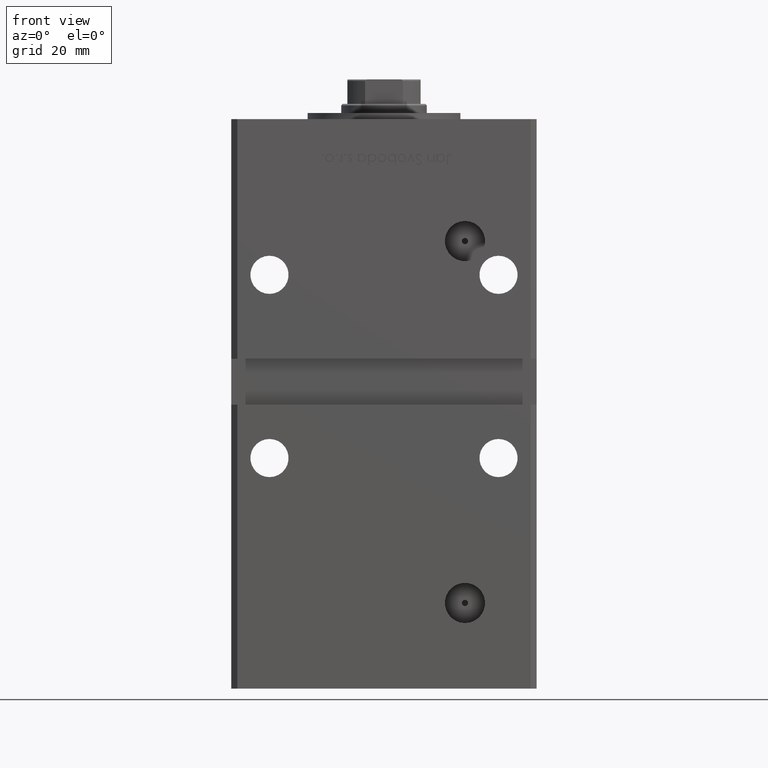
[diagram: clean part render]
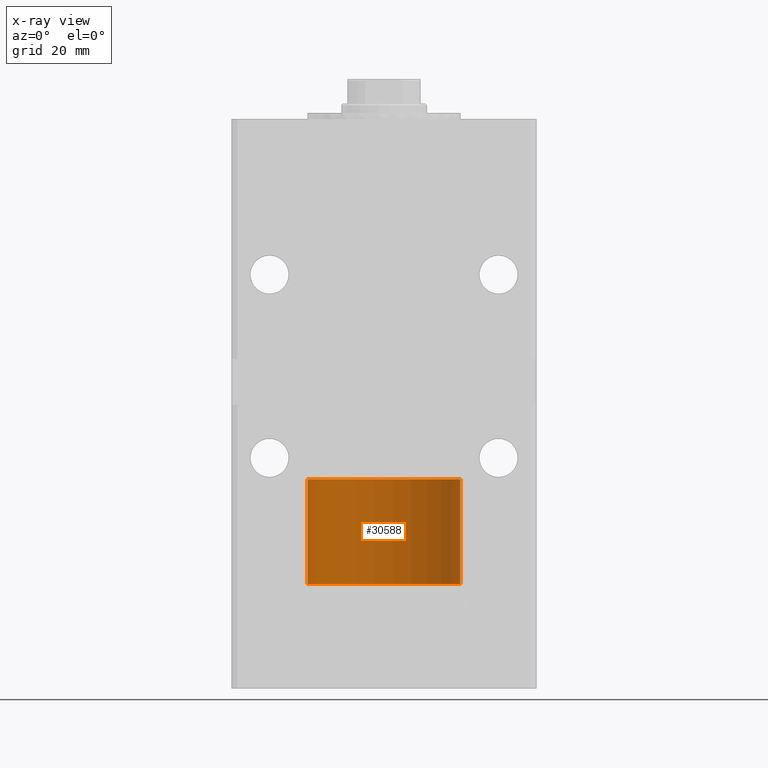
[diagram: x-ray — body ghosted, one internal face saturated and labeled with its STEP entity id]
A machine part, front view, then the same camera in x-ray: the body is ghosted and one INTERNAL B-rep face — a face not visible from any outside direction — is saturated and labeled: STEP entity #30588.
In plain terms, the highlighted cylindrical surface (partial cylindrical patch) has radius 25 mm, axis along (-0, -0, -1).
Its self-contained STEP definition (entity closure, byte-faithful):
#652 = VECTOR ( 'NONE', #23974, 1000.000000000000000 ) ;
#847 = ORIENTED_EDGE ( 'NONE', *, *, #40661, .F. ) ;
#2039 = CARTESIAN_POINT ( 'NONE',  ( 25.00000000000000000, 3.061616997868383043E-15, 0.000000000000000000 ) ) ;
#2046 = VERTEX_POINT ( 'NONE', #39727 ) ;
#3691 = ORIENTED_EDGE ( 'NONE', *, *, #45877, .T. ) ;
#4539 = EDGE_CURVE ( 'NONE', #2046, #31157, #8964, .T. ) ;
#4554 = ORIENTED_EDGE ( 'NONE', *, *, #43288, .T. ) ;
#5861 = CYLINDRICAL_SURFACE ( 'NONE', #44502, 25.00000000000000000 ) ;
#6545 = CARTESIAN_POINT ( 'NONE',  ( 0.000000000000000000, 0.000000000000000000, 34.25000000000000000 ) ) ;
#7578 = CARTESIAN_POINT ( 'NONE',  ( -25.00000000000000000, 0.000000000000000000, 34.25000000000000000 ) ) ;
#7931 = VERTEX_POINT ( 'NONE', #47235 ) ;
#8150 = CARTESIAN_POINT ( 'NONE',  ( 0.000000000000000000, 0.000000000000000000, 0.000000000000000000 ) ) ;
#8964 = CIRCLE ( 'NONE', #18400, 25.00000000000000000 ) ;
#9395 = AXIS2_PLACEMENT_3D ( 'NONE', #8150, #24545, #20508 ) ;
#10504 = VERTEX_POINT ( 'NONE', #2039 ) ;
#10854 = DIRECTION ( 'NONE',  ( 0.000000000000000000, 0.000000000000000000, 1.000000000000000000 ) ) ;
#12918 = CARTESIAN_POINT ( 'NONE',  ( 25.00000000000000000, 3.061616997868383043E-15, 34.25000000000000000 ) ) ;
#14556 = CIRCLE ( 'NONE', #9395, 25.00000000000000000 ) ;
#15325 = VECTOR ( 'NONE', #36875, 1000.000000000000000 ) ;
#16168 = LINE ( 'NONE', #7578, #652 ) ;
#18400 = AXIS2_PLACEMENT_3D ( 'NONE', #6545, #10854, #19179 ) ;
#19179 = DIRECTION ( 'NONE',  ( 1.000000000000000000, 0.000000000000000000, 0.000000000000000000 ) ) ;
#20508 = DIRECTION ( 'NONE',  ( 1.000000000000000000, 0.000000000000000000, 0.000000000000000000 ) ) ;
#21451 = FACE_OUTER_BOUND ( 'NONE', #24270, .T. ) ;
#23974 = DIRECTION ( 'NONE',  ( -0.000000000000000000, -0.000000000000000000, -1.000000000000000000 ) ) ;
#23980 = LINE ( 'NONE', #12918, #15325 ) ;
#24270 = EDGE_LOOP ( 'NONE', ( #39175, #4554, #3691, #847 ) ) ;
#24545 = DIRECTION ( 'NONE',  ( 0.000000000000000000, 0.000000000000000000, 1.000000000000000000 ) ) ;
#30588 = ADVANCED_FACE ( 'NONE', ( #21451 ), #5861, .T. ) ;
#31157 = VERTEX_POINT ( 'NONE', #46608 ) ;
#36875 = DIRECTION ( 'NONE',  ( -0.000000000000000000, -0.000000000000000000, -1.000000000000000000 ) ) ;
#37853 = DIRECTION ( 'NONE',  ( -0.000000000000000000, -0.000000000000000000, -1.000000000000000000 ) ) ;
#39175 = ORIENTED_EDGE ( 'NONE', *, *, #4539, .F. ) ;
#39727 = CARTESIAN_POINT ( 'NONE',  ( 25.00000000000000000, 3.061616997868383043E-15, 34.25000000000000000 ) ) ;
#40661 = EDGE_CURVE ( 'NONE', #31157, #7931, #16168, .T. ) ;
#42154 = CARTESIAN_POINT ( 'NONE',  ( 0.000000000000000000, 0.000000000000000000, 34.25000000000000000 ) ) ;
#42684 = DIRECTION ( 'NONE',  ( -1.000000000000000000, 0.000000000000000000, 0.000000000000000000 ) ) ;
#43288 = EDGE_CURVE ( 'NONE', #2046, #10504, #23980, .T. ) ;
#44502 = AXIS2_PLACEMENT_3D ( 'NONE', #42154, #37853, #42684 ) ;
#45877 = EDGE_CURVE ( 'NONE', #10504, #7931, #14556, .T. ) ;
#46608 = CARTESIAN_POINT ( 'NONE',  ( -25.00000000000000000, 0.000000000000000000, 34.25000000000000000 ) ) ;
#47235 = CARTESIAN_POINT ( 'NONE',  ( -25.00000000000000000, 0.000000000000000000, 0.000000000000000000 ) ) ;